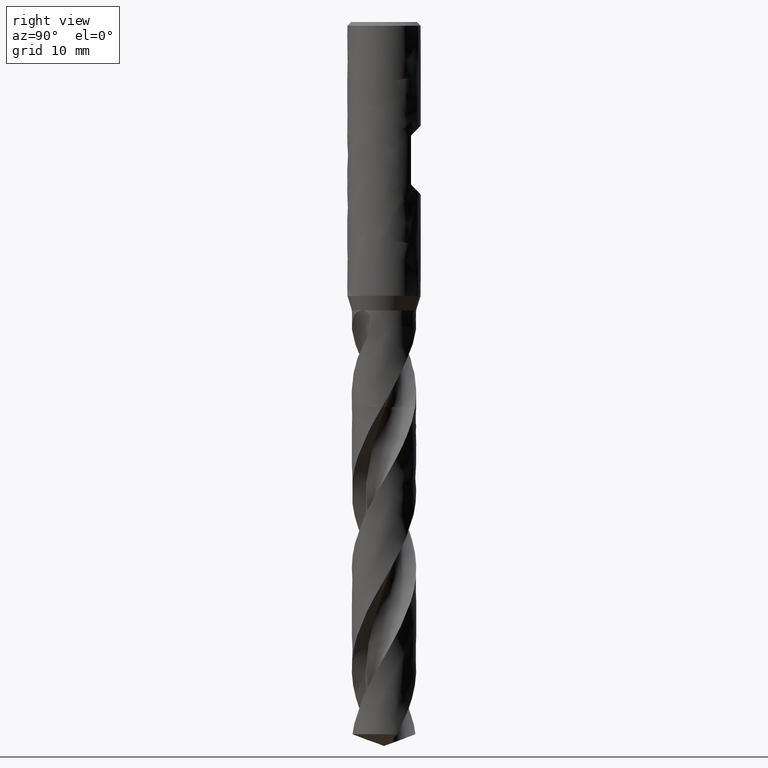
[diagram: clean part render]
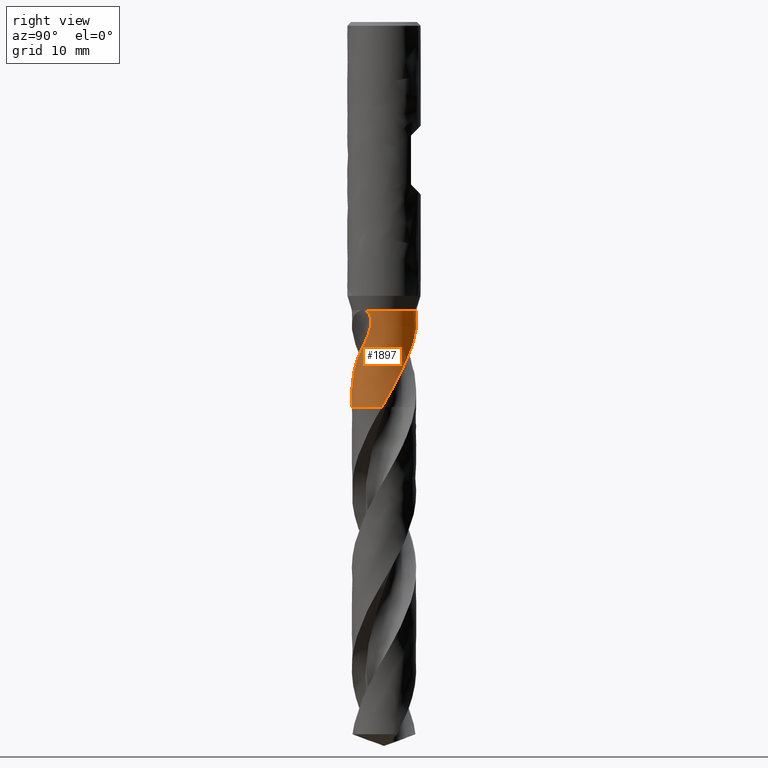
[diagram: same view with one face highlighted and labeled with its STEP entity id]
A machine part, right view. The second image highlights one B-rep face of the part: STEP entity #1897.
In plain terms, the highlighted face is a freeform B-spline surface patch.
Its self-contained STEP definition (entity closure, byte-faithful):
#282 = VERTEX_POINT('', #283);
#283 = CARTESIAN_POINT('', (4.05457110130105, -3.33510917130075, -47.));
#293 = EDGE_CURVE('', #294, #282, #296, .T.);
#294 = VERTEX_POINT('', #295);
#295 = CARTESIAN_POINT('', (-3.73945405359244, 3.68496721573898, -47.));
#296 = CIRCLE('', #297, 5.25);
#297 = AXIS2_PLACEMENT_3D('', #298, #299, #300);
#298 = CARTESIAN_POINT('', (1.76221774462768E-31, 2.87791997799628E-15, -47.));
#299 = DIRECTION('', (3.74939945665464E-33, 6.12323399573677E-17, -1.));
#300 = DIRECTION('', (-1., 6.12323399573677E-17, 0.));
#729 = VERTEX_POINT('', #730);
#730 = CARTESIAN_POINT('', (5.24024601005015, -0.319877717500771, -62.75));
#739 = VERTEX_POINT('', #740);
#740 = CARTESIAN_POINT('', (0.603677637781004, 5.215177207885, -50.1062916649284));
#760 = EDGE_CURVE('', #739, #729, #761, .T.);
#761 = B_SPLINE_CURVE_WITH_KNOTS('', 3, (#762, #763, #764, #765, #766, #767, #768, #769, #770, #771, #772, #773, #774, #775, #776, #777, #778, #779, #780, #781, #782, #783, #784, #785, #786, #787, #788, #789, #790, #791, #792, #793, #794, #795, #796, #797, #798, #799, #800, #801, #802, #803, #804, #805, #806, #807, #808, #809, #810, #811, #812, #813, #814, #815, #816, #817, #818, #819, #820, #821, #822, #823, #824, #825, #826, #827, #828, #829, #830, #831, #832, #833, #834, #835, #836, #837, #838, #839, #840, #841, #842, #843, #844, #845, #846, #847, #848, #849, #850, #851, #852, #853, #854, #855, #856, #857, #858, #859, #860, #861, #862, #863, #864, #865, #866, #867, #868, #869, #870), .UNSPECIFIED., .F., .U., (4, 3, 3, 3, 3, 3, 3, 3, 3, 3, 3, 3, 3, 3, 3, 3, 3, 3, 3, 3, 3, 3, 3, 3, 3, 3, 3, 3, 3, 3, 3, 3, 3, 3, 3, 3, 4), (0., 0.442740275307539, 0.885487215730328, 1.32824884257085, 1.77104964801227, 2.21389736710831, 2.6567981486492, 3.09976605163271, 3.54280221119051, 3.98592041383196, 4.42913172843225, 4.724660348813, 5.38973893991039, 5.83310593076683, 6.27656506339178, 6.72015075772793, 6.91723229440057, 7.21284547141562, 7.50835829828015, 7.80384476717366, 8.00087347987278, 8.19792392610447, 8.86271493305195, 9.15820786821687, 9.82268199842124, 10.2658017056124, 10.7089077658572, 11.1519814019716, 11.4474162584476, 11.8904527802075, 12.3334895145568, 12.5304703156179, 13.1946345544344, 13.6375778190887, 14.3016187311751, 14.3600017908747, 14.9688680659142), .UNSPECIFIED.);
#762 = CARTESIAN_POINT('', (0.603677637781004, 5.215177207885, -50.1062916649284));
#763 = CARTESIAN_POINT('', (0.698235426282538, 5.20423176535812, -50.2190697896166));
#764 = CARTESIAN_POINT('', (0.791930550730369, 5.19077889259796, -50.3323586801306));
#765 = CARTESIAN_POINT('', (0.884604963805073, 5.17493710667212, -50.4461144468703));
#766 = CARTESIAN_POINT('', (0.977280772021983, 5.15909508226034, -50.5598719261158));
#767 = CARTESIAN_POINT('', (1.06896569541165, 5.14085886279618, -50.6741324993201));
#768 = CARTESIAN_POINT('', (1.1595038572475, 5.12035651151642, -50.788862766006));
#769 = CARTESIAN_POINT('', (1.25004502233677, 5.09985348015042, -50.9035968384248));
#770 = CARTESIAN_POINT('', (1.33946271434734, 5.07707918877074, -51.0188392954979));
#771 = CARTESIAN_POINT('', (1.42762617667332, 5.05216621853215, -51.1345481200071));
#772 = CARTESIAN_POINT('', (1.51579744031021, 5.02725104382221, -51.2502671832307));
#773 = CARTESIAN_POINT('', (1.60274148818414, 5.0001891331603, -51.3664852719107));
#774 = CARTESIAN_POINT('', (1.68833671882272, 4.97111849827332, -51.4831651499305));
#775 = CARTESIAN_POINT('', (1.77394101806515, 4.94204478342418, -51.5998573898959));
#776 = CARTESIAN_POINT('', (1.85822031106584, 4.9109535937127, -51.7170438123703));
#777 = CARTESIAN_POINT('', (1.94105431508074, 4.87799222487149, -51.8346981015188));
#778 = CARTESIAN_POINT('', (2.02389824434665, 4.84502690656698, -51.9523664881188));
#779 = CARTESIAN_POINT('', (2.10531708605784, 4.81018316235977, -52.0705353629681));
#780 = CARTESIAN_POINT('', (2.18521854382978, 4.77360659414899, -52.1891675244421));
#781 = CARTESIAN_POINT('', (2.26513211063683, 4.73702448277342, -52.3078176645745));
#782 = CARTESIAN_POINT('', (2.34354834005818, 4.6986995479113, -52.4269610728867));
#783 = CARTESIAN_POINT('', (2.42037919440255, 4.65878359180845, -52.5465688529642));
#784 = CARTESIAN_POINT('', (2.49722188755259, 4.61886148508745, -52.66619506331));
#785 = CARTESIAN_POINT('', (2.57249610942597, 4.577338746237, -52.7863155918516));
#786 = CARTESIAN_POINT('', (2.64611897233778, 4.53437475119058, -52.9069090140753));
#787 = CARTESIAN_POINT('', (2.71975546900513, 4.49140279991178, -53.0275247682374));
#788 = CARTESIAN_POINT('', (2.79176106815192, 4.44697724360326, -53.1486379621104));
#789 = CARTESIAN_POINT('', (2.86208348569771, 4.40124733693725, -53.2702135172893));
#790 = CARTESIAN_POINT('', (2.93242068001866, 4.35550782109437, -53.391814619011));
#791 = CARTESIAN_POINT('', (3.00108961265207, 4.30845308195362, -53.5139045037175));
#792 = CARTESIAN_POINT('', (3.06803904151663, 4.26023901204274, -53.6364582861632));
#793 = CARTESIAN_POINT('', (3.11268021311096, 4.22809037978917, -53.7181758530563));
#794 = CARTESIAN_POINT('', (3.15656184660757, 4.19542293797541, -53.8001095312375));
#795 = CARTESIAN_POINT('', (3.19966889226972, 4.1622853073572, -53.882254583111));
#796 = CARTESIAN_POINT('', (3.29668004861192, 4.08771003050085, -54.0671196404963));
#797 = CARTESIAN_POINT('', (3.38979522862623, 4.01072884494944, -54.25311414728));
#798 = CARTESIAN_POINT('', (3.47890708802885, 3.93188319674716, -54.4401707325383));
#799 = CARTESIAN_POINT('', (3.53831248384496, 3.87932165251238, -54.564869852967));
#800 = CARTESIAN_POINT('', (3.59595380239738, 3.82591977621245, -54.690070602106));
#801 = CARTESIAN_POINT('', (3.65181666505183, 3.77183444027599, -54.815751565791));
#802 = CARTESIAN_POINT('', (3.7076911372827, 3.7177378641737, -54.9414586488456));
#803 = CARTESIAN_POINT('', (3.7618044946886, 3.66294080311432, -55.0676612603099));
#804 = CARTESIAN_POINT('', (3.81417458022069, 3.60757151995651, -55.1943193968314));
#805 = CARTESIAN_POINT('', (3.86655961199507, 3.55218643459574, -55.3210136811495));
#806 = CARTESIAN_POINT('', (3.91720941186653, 3.49621784063744, -55.448184034158));
#807 = CARTESIAN_POINT('', (3.96610377623674, 3.43984314120937, -55.5758334576214));
#808 = CARTESIAN_POINT('', (3.98782714691291, 3.41479631816119, -55.6325470641528));
#809 = CARTESIAN_POINT('', (4.00920459868569, 3.3896688717324, -55.6893587674038));
#810 = CARTESIAN_POINT('', (4.03023176424449, 3.36448092972375, -55.746271922562));
#811 = CARTESIAN_POINT('', (4.06177153869217, 3.32670018331109, -55.8316390193197));
#812 = CARTESIAN_POINT('', (4.09252099163937, 3.28878660341851, -55.9172430616539));
#813 = CARTESIAN_POINT('', (4.12250798085298, 3.2507580574081, -56.00305852382));
#814 = CARTESIAN_POINT('', (4.15248479055121, 3.21274242073533, -56.0888448546916));
#815 = CARTESIAN_POINT('', (4.18170197222089, 3.17461015947374, -56.174847953951));
#816 = CARTESIAN_POINT('', (4.2102336184684, 3.13630879824015, -56.2609992348804));
#817 = CARTESIAN_POINT('', (4.23876271986425, 3.09801085325816, -56.3471428316325));
#818 = CARTESIAN_POINT('', (4.26660868698876, 3.05954200893975, -56.4334390401502));
#819 = CARTESIAN_POINT('', (4.29388335635079, 3.02077237177078, -56.5197777285967));
#820 = CARTESIAN_POINT('', (4.31206995221699, 2.99492099613311, -56.5773478796241));
#821 = CARTESIAN_POINT('', (4.33000379264392, 2.96893358238586, -56.6349374959111));
#822 = CARTESIAN_POINT('', (4.34772434938432, 2.94275261987323, -56.6925040421997));
#823 = CARTESIAN_POINT('', (4.36544686081594, 2.91656876943226, -56.7500769384481));
#824 = CARTESIAN_POINT('', (4.38296171299493, 2.89018211107554, -56.8076222662348));
#825 = CARTESIAN_POINT('', (4.40026204758595, 2.86359807105933, -56.8651401509077));
#826 = CARTESIAN_POINT('', (4.45862835465723, 2.77391123670255, -57.0591887978426));
#827 = CARTESIAN_POINT('', (4.51454509388481, 2.68197986727199, -57.2529655741903));
#828 = CARTESIAN_POINT('', (4.56771694961072, 2.58813868798392, -57.4465419628948));
#829 = CARTESIAN_POINT('', (4.59135130620161, 2.54642722495662, -57.5325847262281));
#830 = CARTESIAN_POINT('', (4.6144463594391, 2.50433510162832, -57.6185936406478));
#831 = CARTESIAN_POINT('', (4.63698193698057, 2.46188921686495, -57.7045720140501));
#832 = CARTESIAN_POINT('', (4.68765762666217, 2.36644127546779, -57.8979113399158));
#833 = CARTESIAN_POINT('', (4.73551571401106, 2.26918382169782, -58.0911255936715));
#834 = CARTESIAN_POINT('', (4.78042863090982, 2.17025392633622, -58.2841388980504));
#835 = CARTESIAN_POINT('', (4.81037983243991, 2.10428027247614, -58.4128542159727));
#836 = CARTESIAN_POINT('', (4.83902525663767, 2.03755438498676, -58.5414968310167));
#837 = CARTESIAN_POINT('', (4.86632735691996, 1.97011625425821, -58.670042248627));
#838 = CARTESIAN_POINT('', (4.89362861636784, 1.90268020045052, -58.7985837073692));
#839 = CARTESIAN_POINT('', (4.91958916522563, 1.83452422370963, -58.927041373621));
#840 = CARTESIAN_POINT('', (4.9441588734782, 1.76572733846617, -59.0554127284995));
#841 = CARTESIAN_POINT('', (4.968726783851, 1.69693548741061, -59.1837746898493));
#842 = CARTESIAN_POINT('', (4.99190652913659, 1.62749552106004, -59.3120642379003));
#843 = CARTESIAN_POINT('', (5.01365131345122, 1.55749815638059, -59.4402836880876));
#844 = CARTESIAN_POINT('', (5.02815040955955, 1.51082496325377, -59.5257784947652));
#845 = CARTESIAN_POINT('', (5.04201235618852, 1.46390185594332, -59.6112476784057));
#846 = CARTESIAN_POINT('', (5.05522507114334, 1.41675667638582, -59.6966919814426));
#847 = CARTESIAN_POINT('', (5.07503896631609, 1.34605738037842, -59.8248249555717));
#848 = CARTESIAN_POINT('', (5.09339622800539, 1.27484533829051, -59.9529096276306));
#849 = CARTESIAN_POINT('', (5.1102622671859, 1.20321218435319, -60.0809458253888));
#850 = CARTESIAN_POINT('', (5.12712831445952, 1.13157899604296, -60.2089820845846));
#851 = CARTESIAN_POINT('', (5.14250433942015, 1.05951683290525, -60.3369839986492));
#852 = CARTESIAN_POINT('', (5.15635600261183, 0.987164005790808, -60.4649772044156));
#853 = CARTESIAN_POINT('', (5.16251466057398, 0.954994849738846, -60.521884910363));
#854 = CARTESIAN_POINT('', (5.16837223938679, 0.92276790794537, -60.5787933592498));
#855 = CARTESIAN_POINT('', (5.17392635332539, 0.890497664435477, -60.6357060455979));
#856 = CARTESIAN_POINT('', (5.19265327410378, 0.781691417320422, -60.8275997266255));
#857 = CARTESIAN_POINT('', (5.20793440560571, 0.672369152174669, -61.0195685312619));
#858 = CARTESIAN_POINT('', (5.21975458929584, 0.56272731187057, -61.2115363199757));
#859 = CARTESIAN_POINT('', (5.22763768574477, 0.489605165496734, -61.339563145378));
#860 = CARTESIAN_POINT('', (5.23398297820045, 0.416329714419399, -61.4676064211058));
#861 = CARTESIAN_POINT('', (5.23878688645225, 0.3429459991543, -61.5956361532851));
#862 = CARTESIAN_POINT('', (5.24598869280457, 0.232932385435744, -61.7875726537688));
#863 = CARTESIAN_POINT('', (5.24972557033938, 0.122652078060063, -61.9795177354784));
#864 = CARTESIAN_POINT('', (5.24998542578646, 0.0123704902828809, -62.1714353878935));
#865 = CARTESIAN_POINT('', (5.25000827250539, 0.00267443631124526, -62.1883089563054));
#866 = CARTESIAN_POINT('', (5.25000425814617, -0.00702173269884866, -62.2051825163632));
#867 = CARTESIAN_POINT('', (5.24997338222907, -0.0167178313851905, -62.2220560462987));
#868 = CARTESIAN_POINT('', (5.2496513829243, -0.11783667510361, -62.3980270106757));
#869 = CARTESIAN_POINT('', (5.24640626288349, -0.218960277602126, -62.5740209496798));
#870 = CARTESIAN_POINT('', (5.24024601005015, -0.319877717500771, -62.75));
#1171 = EDGE_CURVE('', #739, #294, #1172, .T.);
#1172 = B_SPLINE_CURVE_WITH_KNOTS('', 3, (#1173, #1174, #1175, #1176, #1177, #1178, #1179, #1180, #1181, #1182, #1183, #1184, #1185, #1186, #1187, #1188, #1189, #1190, #1191, #1192, #1193, #1194, #1195, #1196, #1197, #1198, #1199, #1200, #1201, #1202, #1203, #1204, #1205, #1206, #1207, #1208, #1209, #1210, #1211, #1212, #1213, #1214, #1215, #1216, #1217, #1218, #1219, #1220, #1221, #1222, #1223, #1224, #1225, #1226, #1227), .UNSPECIFIED., .F., .U., (4, 3, 3, 3, 3, 3, 3, 3, 3, 3, 3, 3, 3, 3, 3, 3, 3, 3, 4), (0., 0.446502727539689, 0.893070922305291, 0.951546813786449, 1.40081200571581, 1.85033026114588, 2.30004299844535, 2.7499050744804, 3.19987063732163, 3.49836596265697, 3.79685118605078, 4.09530452384194, 4.39369705030049, 4.69198947736694, 4.99012746089389, 5.18818704431083, 5.38614712340132, 5.58397931863974, 5.80946394870134), .UNSPECIFIED.);
#1173 = CARTESIAN_POINT('', (0.603677637781005, 5.215177207885, -50.1062916649284));
#1174 = CARTESIAN_POINT('', (0.508316287502383, 5.22621566590417, -49.9925551401789));
#1175 = CARTESIAN_POINT('', (0.410531041028103, 5.23488220710061, -49.8805513688957));
#1176 = CARTESIAN_POINT('', (0.310569211272269, 5.2408059270507, -49.7704415424572));
#1177 = CARTESIAN_POINT('', (0.210592724889974, 5.24673051554982, -49.6603155714704));
#1178 = CARTESIAN_POINT('', (0.10837116696345, 5.24991500068564, -49.5520019372945));
#1179 = CARTESIAN_POINT('', (0.0041991106771528, 5.24999832071112, -49.445670832669));
#1180 = CARTESIAN_POINT('', (-0.00944170371618758, 5.25000923105544, -49.431747301598));
#1181 = CARTESIAN_POINT('', (-0.0231166740521545, 5.24996700461308, -49.4178570060029));
#1182 = CARTESIAN_POINT('', (-0.0368250984342998, 5.24987084718523, -49.4040003646875));
#1183 = CARTESIAN_POINT('', (-0.14214573152081, 5.24913207802433, -49.297540993785));
#1184 = CARTESIAN_POINT('', (-0.249493900587076, 5.24520712002147, -49.1930161917917));
#1185 = CARTESIAN_POINT('', (-0.358531646362858, 5.23774331736067, -49.0906363068896));
#1186 = CARTESIAN_POINT('', (-0.467630811260688, 5.2302753104658, -48.9881987531262));
#1187 = CARTESIAN_POINT('', (-0.57852150442469, 5.21925718736639, -48.8878192680964));
#1188 = CARTESIAN_POINT('', (-0.690818109116964, 5.20435109692996, -48.7897420925053));
#1189 = CARTESIAN_POINT('', (-0.80316329838471, 5.18943855744658, -48.6916224843051));
#1190 = CARTESIAN_POINT('', (-0.917024884385899, 5.17061976742092, -48.595704781232));
#1191 = CARTESIAN_POINT('', (-1.03197008204372, 5.14757591005385, -48.5022817376514));
#1192 = CARTESIAN_POINT('', (-1.14695345022477, 5.12452440037845, -48.408827670535));
#1193 = CARTESIAN_POINT('', (-1.26315138019075, 5.09721864967349, -48.317763340383));
#1194 = CARTESIAN_POINT('', (-1.3800885256019, 5.06535839418121, -48.2294636356256));
#1195 = CARTESIAN_POINT('', (-1.49705257137285, 5.03349080951792, -48.1411436182994));
#1196 = CARTESIAN_POINT('', (-1.61490809951618, 4.99702474470769, -48.0554735150889));
#1197 = CARTESIAN_POINT('', (-1.73312484180392, 4.95568141457077, -47.9729381450227));
#1198 = CARTESIAN_POINT('', (-1.81154672086161, 4.92825533622437, -47.9181863502765));
#1199 = CARTESIAN_POINT('', (-1.8901902644663, 4.89866174887657, -47.8647711441256));
#1200 = CARTESIAN_POINT('', (-1.9688837270388, 4.86682615976839, -47.8128695629279));
#1201 = CARTESIAN_POINT('', (-2.04757452639788, 4.83499164806823, -47.7609697382291));
#1202 = CARTESIAN_POINT('', (-2.12637379150186, 4.80089142846462, -47.710544444499));
#1203 = CARTESIAN_POINT('', (-2.20509267310761, 4.76445865791773, -47.661807797592));
#1204 = CARTESIAN_POINT('', (-2.28380314559028, 4.72802977929162, -47.6130763569641));
#1205 = CARTESIAN_POINT('', (-2.36249974751907, 4.68923780467752, -47.5659915116543));
#1206 = CARTESIAN_POINT('', (-2.44097213605071, 4.6480270041195, -47.5208150892906));
#1207 = CARTESIAN_POINT('', (-2.51942853544799, 4.60682460046438, -47.4756478718448));
#1208 = CARTESIAN_POINT('', (-2.59773719894544, 4.56316380890426, -47.4323436042234));
#1209 = CARTESIAN_POINT('', (-2.67565999579102, 4.5170060423829, -47.3912264481123));
#1210 = CARTESIAN_POINT('', (-2.7535566524893, 4.47086376004415, -47.3501230852499));
#1211 = CARTESIAN_POINT('', (-2.8311567222796, 4.42217272245581, -47.3111574170336));
#1212 = CARTESIAN_POINT('', (-2.90818496170237, 4.3709221256536, -47.2747360985285));
#1213 = CARTESIAN_POINT('', (-2.98517331907363, 4.31969806430069, -47.2383336374829));
#1214 = CARTESIAN_POINT('', (-3.06169607085174, 4.26584555681575, -47.2044216797049));
#1215 = CARTESIAN_POINT('', (-3.13742664665824, 4.20940067430494, -47.1735168915848));
#1216 = CARTESIAN_POINT('', (-3.1877361245675, 4.17190310427425, -47.1529861648782));
#1217 = CARTESIAN_POINT('', (-3.23774037749873, 4.13322897388682, -47.1337658959881));
#1218 = CARTESIAN_POINT('', (-3.28732628348424, 4.09340761541209, -47.1160424820497));
#1219 = CARTESIAN_POINT('', (-3.33688727771292, 4.05360626302536, -47.098327972282));
#1220 = CARTESIAN_POINT('', (-3.38607320940206, 4.01262398161084, -47.0820933158315));
#1221 = CARTESIAN_POINT('', (-3.43475254704662, 3.97051318352638, -47.0675589968507));
#1222 = CARTESIAN_POINT('', (-3.48340043743553, 3.92842958936655, -47.0530340671605));
#1223 = CARTESIAN_POINT('', (-3.53159234649588, 3.8851750723081, -47.0401922682364));
#1224 = CARTESIAN_POINT('', (-3.57917280947477, 3.84083610688044, -47.0292938551994));
#1225 = CARTESIAN_POINT('', (-3.63340393742654, 3.79029956400521, -47.0168720922555));
#1226 = CARTESIAN_POINT('', (-3.68692463903789, 3.73827334322632, -47.0069552123042));
#1227 = CARTESIAN_POINT('', (-3.73945405359244, 3.68496721573898, -47.));
#1377 = EDGE_CURVE('', #1378, #1380, #1382, .T.);
#1378 = VERTEX_POINT('', #1379);
#1379 = CARTESIAN_POINT('', (2.95361844529022, -4.34034999506277, -54.8385613551656));
#1380 = VERTEX_POINT('', #1381);
#1381 = CARTESIAN_POINT('', (1.71137535394822, -4.96323426788405, -57.2777534805076));
#1382 = B_SPLINE_CURVE_WITH_KNOTS('', 3, (#1383, #1384, #1385, #1386, #1387, #1388, #1389, #1390, #1391, #1392, #1393, #1394, #1395, #1396, #1397, #1398, #1399, #1400, #1401, #1402, #1403, #1404, #1405, #1406, #1407, #1408, #1409, #1410), .UNSPECIFIED., .F., .U., (4, 3, 3, 3, 3, 3, 3, 3, 3, 4), (0., 0.443275097738758, 0.886721393015704, 1.08377911295281, 1.28081934822773, 1.47782777787282, 1.67481838501628, 1.97025941584125, 2.1672700817007, 2.81043560877091), .UNSPECIFIED.);
#1383 = CARTESIAN_POINT('', (2.95361844529022, -4.34034999506277, -54.8385613551656));
#1384 = CARTESIAN_POINT('', (2.88671516690374, -4.38587783436547, -54.9621886251623));
#1385 = CARTESIAN_POINT('', (2.819818262263, -4.42913633477714, -55.0866780958339));
#1386 = CARTESIAN_POINT('', (2.7531878903385, -4.47017409509892, -55.2120129691223));
#1387 = CARTESIAN_POINT('', (2.68653178505857, -4.51122770463842, -55.3373962480665));
#1388 = CARTESIAN_POINT('', (2.62012231153613, -4.55006992754933, -55.4636581918009));
#1389 = CARTESIAN_POINT('', (2.55429385585645, -4.58672899765551, -55.5908278771346));
#1390 = CARTESIAN_POINT('', (2.52504114696841, -4.6030194771275, -55.6473392709694));
#1391 = CARTESIAN_POINT('', (2.49590228157491, -4.61887977557487, -55.7040357371255));
#1392 = CARTESIAN_POINT('', (2.46691201571483, -4.63431171876923, -55.760922097059));
#1393 = CARTESIAN_POINT('', (2.43792432212142, -4.64974229270836, -55.8178034095434));
#1394 = CARTESIAN_POINT('', (2.40908189671231, -4.66474672046911, -55.874876155353));
#1395 = CARTESIAN_POINT('', (2.38037203380683, -4.67935134187104, -55.932115315965));
#1396 = CARTESIAN_POINT('', (2.35166680515927, -4.69395360583982, -55.9893452372074));
#1397 = CARTESIAN_POINT('', (2.32309286136788, -4.70815694330825, -56.0467442059611));
#1398 = CARTESIAN_POINT('', (2.29461855597807, -4.72199382491772, -56.1042788458751));
#1399 = CARTESIAN_POINT('', (2.26614682653566, -4.73582945476429, -56.1618082808787));
#1400 = CARTESIAN_POINT('', (2.2377736906749, -4.74929931555561, -56.2194754967207));
#1401 = CARTESIAN_POINT('', (2.20944736263245, -4.7624407977167, -56.2772389843991));
#1402 = CARTESIAN_POINT('', (2.1669643240871, -4.78215002696647, -56.3638710558019));
#1403 = CARTESIAN_POINT('', (2.12458885911816, -4.80112155784317, -56.4507257083168));
#1404 = CARTESIAN_POINT('', (2.08206229142328, -4.81949339813151, -56.5376299349213));
#1405 = CARTESIAN_POINT('', (2.0537040522346, -4.83174439955187, -56.5955807872506));
#1406 = CARTESIAN_POINT('', (2.02527576408263, -4.84372936650933, -56.6535542545682));
#1407 = CARTESIAN_POINT('', (1.99667849482033, -4.85548916056065, -56.7114894035366));
#1408 = CARTESIAN_POINT('', (1.90331919532447, -4.89388045326686, -56.9006258163271));
#1409 = CARTESIAN_POINT('', (1.80810799732161, -4.92987983550058, -57.0893583894154));
#1410 = CARTESIAN_POINT('', (1.71137535394822, -4.96323426788405, -57.2777534805076));
#1440 = VERTEX_POINT('', #1441);
#1441 = CARTESIAN_POINT('', (-1.35633793945835, -5.07176965111645, -62.75));
#1514 = EDGE_CURVE('', #1380, #1440, #1515, .T.);
#1515 = B_SPLINE_CURVE_WITH_KNOTS('', 3, (#1516, #1517, #1518, #1519, #1520, #1521, #1522, #1523, #1524, #1525, #1526, #1527, #1528, #1529, #1530, #1531, #1532, #1533, #1534, #1535, #1536, #1537, #1538, #1539, #1540, #1541, #1542, #1543, #1544, #1545, #1546, #1547, #1548, #1549, #1550, #1551, #1552, #1553, #1554, #1555), .UNSPECIFIED., .F., .U., (4, 3, 3, 3, 3, 3, 3, 3, 3, 3, 3, 3, 3, 4), (0., 0.443122413331046, 1.10741992521716, 1.55044232116235, 2.2146233277024, 2.65756114681199, 3.10046660334346, 3.54337892476249, 3.60176904083832, 3.89756055023121, 4.56359694868237, 5.00736769657387, 6.00678049612909, 6.2967392320551), .UNSPECIFIED.);
#1516 = CARTESIAN_POINT('', (1.71137535394822, -4.96323426788405, -57.2777534805076));
#1517 = CARTESIAN_POINT('', (1.64472936535681, -4.98621450539831, -57.4075522397863));
#1518 = CARTESIAN_POINT('', (1.57730785494607, -5.00795894247817, -57.5371799518964));
#1519 = CARTESIAN_POINT('', (1.50922501488334, -5.02839336711546, -57.6666583601371));
#1520 = CARTESIAN_POINT('', (1.40716007775722, -5.05902719884005, -57.860763153417));
#1521 = CARTESIAN_POINT('', (1.30359332093488, -5.08672258493493, -58.054571379177));
#1522 = CARTESIAN_POINT('', (1.19872514732063, -5.11131666218999, -58.2480401139578));
#1523 = CARTESIAN_POINT('', (1.12878818579105, -5.12771854062043, -58.3770651078641));
#1524 = CARTESIAN_POINT('', (1.05826295402238, -5.14274383430215, -58.5059552423369));
#1525 = CARTESIAN_POINT('', (0.987202863552663, -5.15634856329494, -58.6346915004308));
#1526 = CARTESIAN_POINT('', (0.880669282304901, -5.17674482921477, -58.8276934304949));
#1527 = CARTESIAN_POINT('', (0.772901480882956, -5.19395053323652, -59.0203824387856));
#1528 = CARTESIAN_POINT('', (0.664242544600012, -5.20780969717052, -59.212778685491));
#1529 = CARTESIAN_POINT('', (0.591778635228896, -5.21705227982066, -59.3410864405779));
#1530 = CARTESIAN_POINT('', (0.518909459386653, -5.22480860747948, -59.4692817679367));
#1531 = CARTESIAN_POINT('', (0.445744284651251, -5.23104311134031, -59.5973727968122));
#1532 = CARTESIAN_POINT('', (0.372584455618068, -5.2372771596866, -59.7254544669115));
#1533 = CARTESIAN_POINT('', (0.299118202005364, -5.24199037882185, -59.8534446169329));
#1534 = CARTESIAN_POINT('', (0.22546491426675, -5.24515639160881, -59.9813559445263));
#1535 = CARTESIAN_POINT('', (0.151810484926626, -5.24832245346792, -60.1092692547027));
#1536 = CARTESIAN_POINT('', (0.0779607423508525, -5.2499409731382, -60.2371178983102));
#1537 = CARTESIAN_POINT('', (0.00408181786060017, -5.24999841321527, -60.3649408815574));
#1538 = CARTESIAN_POINT('', (-0.00565780501266325, -5.25000598566834, -60.3817920696324));
#1539 = CARTESIAN_POINT('', (-0.0153979500584355, -5.24998645496615, -60.3986429898854));
#1540 = CARTESIAN_POINT('', (-0.0251381768981581, -5.24993981604191, -60.4154937660252));
#1541 = CARTESIAN_POINT('', (-0.0744800277519797, -5.24970355349059, -60.5008560986224));
#1542 = CARTESIAN_POINT('', (-0.123824042735875, -5.24877126720241, -60.5862180858206));
#1543 = CARTESIAN_POINT('', (-0.173114654724651, -5.24714506339586, -60.6715948562155));
#1544 = CARTESIAN_POINT('', (-0.28410276846003, -5.24348332567836, -60.8638384969538));
#1545 = CARTESIAN_POINT('', (-0.394865765942166, -5.2363036957538, -61.0561771704198));
#1546 = CARTESIAN_POINT('', (-0.505235584737009, -5.22563268934154, -61.2485154657209));
#1547 = CARTESIAN_POINT('', (-0.578773453155515, -5.21852274684089, -61.3766677849521));
#1548 = CARTESIAN_POINT('', (-0.65214900923881, -5.20986184797581, -61.5048366840878));
#1549 = CARTESIAN_POINT('', (-0.725324217416633, -5.19965429424196, -61.6329873027095));
#1550 = CARTESIAN_POINT('', (-0.89012155931109, -5.17666593842487, -61.9215943574333));
#1551 = CARTESIAN_POINT('', (-1.0539531561142, -5.14581275987572, -62.2102347932606));
#1552 = CARTESIAN_POINT('', (-1.21587950850561, -5.10726316345615, -62.4988079130276));
#1553 = CARTESIAN_POINT('', (-1.26285905536895, -5.09607880374688, -62.5825313725101));
#1554 = CARTESIAN_POINT('', (-1.30969063489914, -5.08424448993985, -62.666273106071));
#1555 = CARTESIAN_POINT('', (-1.35633793945835, -5.07176965111645, -62.75));
#1558 = EDGE_CURVE('', #1378, #282, #1559, .T.);
#1559 = B_SPLINE_CURVE_WITH_KNOTS('', 3, (#1560, #1561, #1562, #1563, #1564, #1565, #1566, #1567, #1568, #1569, #1570, #1571, #1572, #1573, #1574, #1575, #1576, #1577, #1578, #1579, #1580, #1581, #1582, #1583, #1584, #1585, #1586, #1587, #1588, #1589, #1590, #1591, #1592, #1593, #1594, #1595, #1596, #1597, #1598, #1599, #1600, #1601, #1602, #1603, #1604, #1605, #1606, #1607, #1608, #1609, #1610, #1611, #1612, #1613, #1614, #1615, #1616, #1617, #1618, #1619, #1620, #1621, #1622, #1623, #1624, #1625, #1626, #1627, #1628, #1629, #1630, #1631, #1632, #1633, #1634, #1635, #1636, #1637, #1638, #1639, #1640, #1641, #1642, #1643, #1644, #1645, #1646, #1647, #1648, #1649, #1650, #1651, #1652, #1653, #1654, #1655, #1656, #1657, #1658, #1659, #1660, #1661, #1662, #1663, #1664, #1665, #1666, #1667, #1668, #1669, #1670, #1671, #1672, #1673, #1674, #1675, #1676, #1677, #1678, #1679, #1680, #1681, #1682, #1683), .UNSPECIFIED., .F., .U., (4, 3, 3, 3, 3, 3, 3, 3, 3, 3, 3, 3, 3, 3, 3, 3, 3, 3, 3, 3, 3, 3, 3, 3, 3, 3, 3, 3, 3, 3, 3, 3, 3, 3, 3, 3, 3, 3, 3, 3, 3, 4), (0., 0.29562796074371, 0.591199318638043, 0.886699652710624, 1.18211770536242, 1.47744390318356, 1.77267810464143, 2.06781964609311, 2.3628681351692, 2.65782224508767, 2.95267640381804, 3.24743594570416, 3.54210767498375, 3.83669812712478, 4.13121524277838, 4.42567578105949, 4.72009884938631, 5.014503349999, 5.308918054573, 5.6033835110092, 5.89795006441847, 6.19268234471788, 6.48767413165473, 6.78305336383382, 6.98021146809293, 7.17757785058406, 7.23600342943452, 7.27494875200734, 7.47282915509148, 7.67111976206372, 7.86988294468269, 8.00216687673366, 8.13457932789899, 8.26709700072615, 8.39968197616151, 8.5322844063644, 8.66484921049095, 8.79732491262883, 8.92967135930883, 9.06186371203732, 9.19389223963517, 9.35060512934077), .UNSPECIFIED.);
#1560 = CARTESIAN_POINT('', (2.95361844529022, -4.34034999506277, -54.8385613551656));
#1561 = CARTESIAN_POINT('', (2.99823741860354, -4.30998667810952, -54.7561121539634));
#1562 = CARTESIAN_POINT('', (3.04274577404988, -4.27869059696005, -54.673941252752));
#1563 = CARTESIAN_POINT('', (3.08701240038286, -4.2465108547939, -54.5919925824635));
#1564 = CARTESIAN_POINT('', (3.13127055114007, -4.21433727397018, -54.5100596025997));
#1565 = CARTESIAN_POINT('', (3.17529078723359, -4.18127757637734, -54.4283410354867));
#1566 = CARTESIAN_POINT('', (3.21894570521733, -4.14739539311878, -54.3467739943836));
#1567 = CARTESIAN_POINT('', (3.26259013321605, -4.11352135152239, -54.2652265532954));
#1568 = CARTESIAN_POINT('', (3.30587306240559, -4.07882233026009, -54.1838234861033));
#1569 = CARTESIAN_POINT('', (3.34867318439906, -4.04337580544896, -54.1024971965432));
#1570 = CARTESIAN_POINT('', (3.39146138879232, -4.00793915064503, -54.0211935521104));
#1571 = CARTESIAN_POINT('', (3.43377051835795, -3.97175248711147, -53.9399598990858));
#1572 = CARTESIAN_POINT('', (3.47548638660402, -3.93490716237782, -53.8587251902558));
#1573 = CARTESIAN_POINT('', (3.5171892840652, -3.89807329402279, -53.77751573987));
#1574 = CARTESIAN_POINT('', (3.55830268808783, -3.86057809720867, -53.6962986577207));
#1575 = CARTESIAN_POINT('', (3.59871892758373, -3.82252823145257, -53.6149993609983));
#1576 = CARTESIAN_POINT('', (3.63912257711274, -3.78449021851989, -53.5337253896269));
#1577 = CARTESIAN_POINT('', (3.67883267862811, -3.74589497139481, -53.4523623211411));
#1578 = CARTESIAN_POINT('', (3.71775626746606, -3.70685693488667, -53.3708406081857));
#1579 = CARTESIAN_POINT('', (3.7566676400365, -3.66783115056573, -53.2893444810277));
#1580 = CARTESIAN_POINT('', (3.79479645943264, -3.62835946524124, -53.2076827702588));
#1581 = CARTESIAN_POINT('', (3.83206375831768, -3.58856341064059, -53.1257916964413));
#1582 = CARTESIAN_POINT('', (3.86931930754974, -3.54877990296031, -53.0439264412833));
#1583 = CARTESIAN_POINT('', (3.90571744001887, -3.50866849527206, -52.9618243990425));
#1584 = CARTESIAN_POINT('', (3.94119158160834, -3.46835824520184, -52.8794272361558));
#1585 = CARTESIAN_POINT('', (3.97665437584399, -3.4280608894442, -52.7970564302074));
#1586 = CARTESIAN_POINT('', (4.01119823163561, -3.38755966479464, -52.7143831476078));
#1587 = CARTESIAN_POINT('', (4.04476211142283, -3.34699857514136, -52.6313488155011));
#1588 = CARTESIAN_POINT('', (4.078314617408, -3.30645123043675, -52.5483426212635));
#1589 = CARTESIAN_POINT('', (4.11089141797708, -3.26583976284581, -52.4649659549078));
#1590 = CARTESIAN_POINT('', (4.14244277942318, -3.22531670060549, -52.3811669148187));
#1591 = CARTESIAN_POINT('', (4.17398401623592, -3.18480664196086, -52.2973947653143));
#1592 = CARTESIAN_POINT('', (4.20450464015041, -3.14437963755036, -52.213189814497));
#1593 = CARTESIAN_POINT('', (4.23396520518434, -3.10419693983618, -52.1285073876544));
#1594 = CARTESIAN_POINT('', (4.26341699354223, -3.06402621305736, -52.043850188781));
#1595 = CARTESIAN_POINT('', (4.29181380175661, -3.0240936118687, -51.9587034316936));
#1596 = CARTESIAN_POINT('', (4.31912429041566, -2.98457121944533, -51.8730293156792));
#1597 = CARTESIAN_POINT('', (4.34642724622323, -2.94505972819314, -51.7873788305269));
#1598 = CARTESIAN_POINT('', (4.37264915179785, -2.90595142308535, -51.7011866864655));
#1599 = CARTESIAN_POINT('', (4.39776311343989, -2.86743432323523, -51.6144206971989));
#1600 = CARTESIAN_POINT('', (4.42287082311512, -2.82892681198102, -51.5276763077936));
#1601 = CARTESIAN_POINT('', (4.44687627404241, -2.79100243140606, -51.4403411476696));
#1602 = CARTESIAN_POINT('', (4.46975971323877, -2.75386058214786, -51.3523943123333));
#1603 = CARTESIAN_POINT('', (4.49263875647715, -2.71672586791892, -51.2644643717736));
#1604 = CARTESIAN_POINT('', (4.51440178959315, -2.68036441694278, -51.1759023983921));
#1605 = CARTESIAN_POINT('', (4.53503286020505, -2.64499091810552, -51.0866993346969));
#1606 = CARTESIAN_POINT('', (4.55566130552367, -2.60962192052805, -50.9975076220463));
#1607 = CARTESIAN_POINT('', (4.57516418432164, -2.57523020094574, -50.9076501251503));
#1608 = CARTESIAN_POINT('', (4.59352490374643, -2.54205211564631, -50.8171307405439));
#1609 = CARTESIAN_POINT('', (4.61188446525723, -2.5088761227142, -50.726617064519));
#1610 = CARTESIAN_POINT('', (4.62910782609383, -2.47690319009289, -50.6354102982427));
#1611 = CARTESIAN_POINT('', (4.64517354021965, -2.44639791964497, -50.543531209991));
#1612 = CARTESIAN_POINT('', (4.66123981117774, -2.4158915918946, -50.4516489372408));
#1613 = CARTESIAN_POINT('', (4.67615542941987, -2.38683985594089, -50.3590560502153));
#1614 = CARTESIAN_POINT('', (4.6898915408914, -2.35953752559167, -50.2657982615851));
#1615 = CARTESIAN_POINT('', (4.7036300202244, -2.33223048880597, -50.1725243969697));
#1616 = CARTESIAN_POINT('', (4.7161962317463, -2.30665864829869, -50.0785369549175));
#1617 = CARTESIAN_POINT('', (4.72754517986821, -2.28315934010416, -49.983914453452));
#1618 = CARTESIAN_POINT('', (4.7388980243531, -2.25965196403995, -49.8892594658382));
#1619 = CARTESIAN_POINT('', (4.74904071757534, -2.23820276831623, -49.7939063045741));
#1620 = CARTESIAN_POINT('', (4.75790111571561, -2.21920638361377, -49.6979809106446));
#1621 = CARTESIAN_POINT('', (4.76676649882859, -2.20019931130362, -49.6020015478682));
#1622 = CARTESIAN_POINT('', (4.77435664962945, -2.18363088239344, -49.505366945992));
#1623 = CARTESIAN_POINT('', (4.780559969938, -2.16996460197543, -49.4082759912578));
#1624 = CARTESIAN_POINT('', (4.786768752162, -2.15628628863562, -49.3110995496298));
#1625 = CARTESIAN_POINT('', (4.79159670078661, -2.14549892956892, -49.2133548086939));
#1626 = CARTESIAN_POINT('', (4.79487007789356, -2.1381583047382, -49.1153532461072));
#1627 = CARTESIAN_POINT('', (4.79814775428762, -2.13080803865544, -49.0172229672619));
#1628 = CARTESIAN_POINT('', (4.79987349875677, -2.12690254796734, -48.9186809508566));
#1629 = CARTESIAN_POINT('', (4.79978056008164, -2.12711226197923, -48.8202214740007));
#1630 = CARTESIAN_POINT('', (4.79971852588625, -2.12725224073371, -48.754502284266));
#1631 = CARTESIAN_POINT('', (4.79884460126465, -2.12922755835332, -48.6887490665839));
#1632 = CARTESIAN_POINT('', (4.79705016360045, -2.13326269547398, -48.6231782422521));
#1633 = CARTESIAN_POINT('', (4.79525383028856, -2.13730209532189, -48.5575381487648));
#1634 = CARTESIAN_POINT('', (4.79253303336256, -2.1434113746405, -48.4920006911226));
#1635 = CARTESIAN_POINT('', (4.78874982334384, -2.15183064608354, -48.426862617557));
#1636 = CARTESIAN_POINT('', (4.78762989485112, -2.154322969251, -48.4075800548164));
#1637 = CARTESIAN_POINT('', (4.78641640401012, -2.15701835044067, -48.3883277484455));
#1638 = CARTESIAN_POINT('', (4.78510524423157, -2.15992310085972, -48.3691150852911));
#1639 = CARTESIAN_POINT('', (4.78423125134139, -2.16185934940512, -48.3563083082124));
#1640 = CARTESIAN_POINT('', (4.78331378807307, -2.16388877811402, -48.3435181399498));
#1641 = CARTESIAN_POINT('', (4.78235157771986, -2.16601324720797, -48.3307475783549));
#1642 = CARTESIAN_POINT('', (4.77746260620887, -2.17680763207571, -48.2658606109588));
#1643 = CARTESIAN_POINT('', (4.77141417317393, -2.19007223881883, -48.2013963416687));
#1644 = CARTESIAN_POINT('', (4.76402032140055, -2.20603952305543, -48.1378265680728));
#1645 = CARTESIAN_POINT('', (4.75661114225418, -2.22203990729575, -48.074125015039));
#1646 = CARTESIAN_POINT('', (4.7478324382203, -2.24079557548598, -48.0111740405951));
#1647 = CARTESIAN_POINT('', (4.73747464880207, -2.26248402247568, -47.9496019401281));
#1648 = CARTESIAN_POINT('', (4.72709217420531, -2.28422415840827, -47.88788309809));
#1649 = CARTESIAN_POINT('', (4.71508888744154, -2.30898297370955, -47.8273663426142));
#1650 = CARTESIAN_POINT('', (4.70125767838995, -2.33680898692629, -47.7688509139114));
#1651 = CARTESIAN_POINT('', (4.69205251929431, -2.3553281834551, -47.7299068253107));
#1652 = CARTESIAN_POINT('', (4.68201943014604, -2.37524005566224, -47.6917726579138));
#1653 = CARTESIAN_POINT('', (4.67110908540331, -2.39650577138103, -47.6547176806024));
#1654 = CARTESIAN_POINT('', (4.66018814082566, -2.41779214759055, -47.6176267029031));
#1655 = CARTESIAN_POINT('', (4.64836643876782, -2.44047689980422, -47.5815467248007));
#1656 = CARTESIAN_POINT('', (4.63561364125412, -2.46446468203923, -47.5467606654046));
#1657 = CARTESIAN_POINT('', (4.62285070971952, -2.48847152618488, -47.5119469632382));
#1658 = CARTESIAN_POINT('', (4.60912698877667, -2.51383565079623, -47.4783557217449));
#1659 = CARTESIAN_POINT('', (4.5944398295382, -2.54039812878867, -47.4462630907819));
#1660 = CARTESIAN_POINT('', (4.57974521103711, -2.56697409723874, -47.4141541607266));
#1661 = CARTESIAN_POINT('', (4.56405144983333, -2.59481134825406, -47.3834720298728));
#1662 = CARTESIAN_POINT('', (4.54738966527924, -2.62368962190872, -47.354461212107));
#1663 = CARTESIAN_POINT('', (4.53072568720681, -2.65257169737842, -47.3254465750767));
#1664 = CARTESIAN_POINT('', (4.5130529315297, -2.68256417639245, -47.2980343935205));
#1665 = CARTESIAN_POINT('', (4.49443727132595, -2.71339890434786, -47.2724143162816));
#1666 = CARTESIAN_POINT('', (4.47582689333498, -2.74422488291742, -47.246801508766));
#1667 = CARTESIAN_POINT('', (4.45622941679145, -2.7759658658401, -47.2229180766457));
#1668 = CARTESIAN_POINT('', (4.43574050527634, -2.80832800254008, -47.2008840201488));
#1669 = CARTESIAN_POINT('', (4.41526536515986, -2.8406683873825, -47.178864773603));
#1670 = CARTESIAN_POINT('', (4.39385309707633, -2.87370267875083, -47.1586408075836));
#1671 = CARTESIAN_POINT('', (4.37161972306257, -2.90713621919078, -47.1402599880533));
#1672 = CARTESIAN_POINT('', (4.34940804196979, -2.94053713879908, -47.1218971025381));
#1673 = CARTESIAN_POINT('', (4.32632996869277, -2.97440695334806, -47.1053333209157));
#1674 = CARTESIAN_POINT('', (4.30251096931619, -3.00847126609415, -47.0905531437204));
#1675 = CARTESIAN_POINT('', (4.27871970293756, -3.04249591699296, -47.0757901754185));
#1676 = CARTESIAN_POINT('', (4.25414421013057, -3.07677922327679, -47.0627770076737));
#1677 = CARTESIAN_POINT('', (4.22890982749249, -3.11108046680536, -47.0514501774448));
#1678 = CARTESIAN_POINT('', (4.20370671766215, -3.14533920102394, -47.0401373844836));
#1679 = CARTESIAN_POINT('', (4.17780449719514, -3.17967310838792, -47.030486507332));
#1680 = CARTESIAN_POINT('', (4.15132165843095, -3.21388059645077, -47.0224029492428));
#1681 = CARTESIAN_POINT('', (4.11988752623351, -3.25448359643444, -47.0128080702396));
#1682 = CARTESIAN_POINT('', (4.0875775353127, -3.29498246880709, -47.0054030582621));
#1683 = CARTESIAN_POINT('', (4.05457110130105, -3.33510917130076, -47.));
#1897 = ADVANCED_FACE('', (#1898), #1913, .T.);
#1898 = FACE_OUTER_BOUND('', #1899, .T.);
#1899 = EDGE_LOOP('', (#1900, #1907, #1908, #1909, #1910, #1911, #1912));
#1900 = ORIENTED_EDGE('', *, *, #1901, .F.);
#1901 = EDGE_CURVE('', #729, #1440, #1902, .T.);
#1902 = CIRCLE('', #1903, 5.25);
#1903 = AXIS2_PLACEMENT_3D('', #1904, #1905, #1906);
#1904 = CARTESIAN_POINT('', (2.35274815905079E-31, 3.84232933232482E-15, -62.75));
#1905 = DIRECTION('', (3.74939945665464E-33, 6.12323399573677E-17, -1.));
#1906 = DIRECTION('', (-1., 6.12323399573677E-17, 0.));
#1907 = ORIENTED_EDGE('', *, *, #760, .F.);
#1908 = ORIENTED_EDGE('', *, *, #1171, .T.);
#1909 = ORIENTED_EDGE('', *, *, #293, .T.);
#1910 = ORIENTED_EDGE('', *, *, #1558, .F.);
#1911 = ORIENTED_EDGE('', *, *, #1377, .T.);
#1912 = ORIENTED_EDGE('', *, *, #1514, .T.);
#1913 = (
   BOUNDED_SURFACE ()
   B_SPLINE_SURFACE (2, 1, ((#1914, #1915), (#1916, #1917), (#1918, #1919), (#1920, #1921), (#1922, #1923), (#1924, #1925), (#1926, #1927), (#1928, #1929), (#1930, #1931)), .UNSPECIFIED., .T., .F., .U.)
   B_SPLINE_SURFACE_WITH_KNOTS ((3, 2, 2, 2, 3), (2, 2), (0., 8.24668071567321, 16.4933614313464, 24.7400421470196, 32.9867228626928), (0., 0.227966309769738), .UNSPECIFIED.)
   GEOMETRIC_REPRESENTATION_ITEM ()
   RATIONAL_B_SPLINE_SURFACE (((1., 1.), (0.707106781186548, 0.707106781186548), (1., 1.), (0.707106781186548, 0.707106781186548), (1., 1.), (0.707106781186548, 0.707106781186548), (1., 1.), (0.707106781186548, 0.707106781186548), (1., 1.)))
   REPRESENTATION_ITEM ('')
   SURFACE ()
);
#1914 = CARTESIAN_POINT('', (-5.25, 3.19938976277246E-15, -47.));
#1915 = CARTESIAN_POINT('', (-5.25, 4.163799117101E-15, -62.75));
#1916 = CARTESIAN_POINT('', (-5.25, 5.25, -47.));
#1917 = CARTESIAN_POINT('', (-5.25, 5.25, -62.75));
#1918 = CARTESIAN_POINT('', (1.4791141972894E-31, 5.25, -47.));
#1919 = CARTESIAN_POINT('', (1.97215226305253E-31, 5.25, -62.75));
#1920 = CARTESIAN_POINT('', (5.25, 5.25, -47.));
#1921 = CARTESIAN_POINT('', (5.25, 5.25, -62.75));
#1922 = CARTESIAN_POINT('', (5.25, 3.19938976277246E-15, -47.));
#1923 = CARTESIAN_POINT('', (5.25, 4.163799117101E-15, -62.75));
#1924 = CARTESIAN_POINT('', (5.25, -5.25, -47.));
#1925 = CARTESIAN_POINT('', (5.25, -5.25, -62.75));
#1926 = CARTESIAN_POINT('', (6.42939569552361E-16, -5.25, -47.));
#1927 = CARTESIAN_POINT('', (6.42939569552361E-16, -5.25, -62.75));
#1928 = CARTESIAN_POINT('', (-5.25, -5.25, -47.));
#1929 = CARTESIAN_POINT('', (-5.25, -5.25, -62.75));
#1930 = CARTESIAN_POINT('', (-5.25, 3.19938976277246E-15, -47.));
#1931 = CARTESIAN_POINT('', (-5.25, 4.163799117101E-15, -62.75));